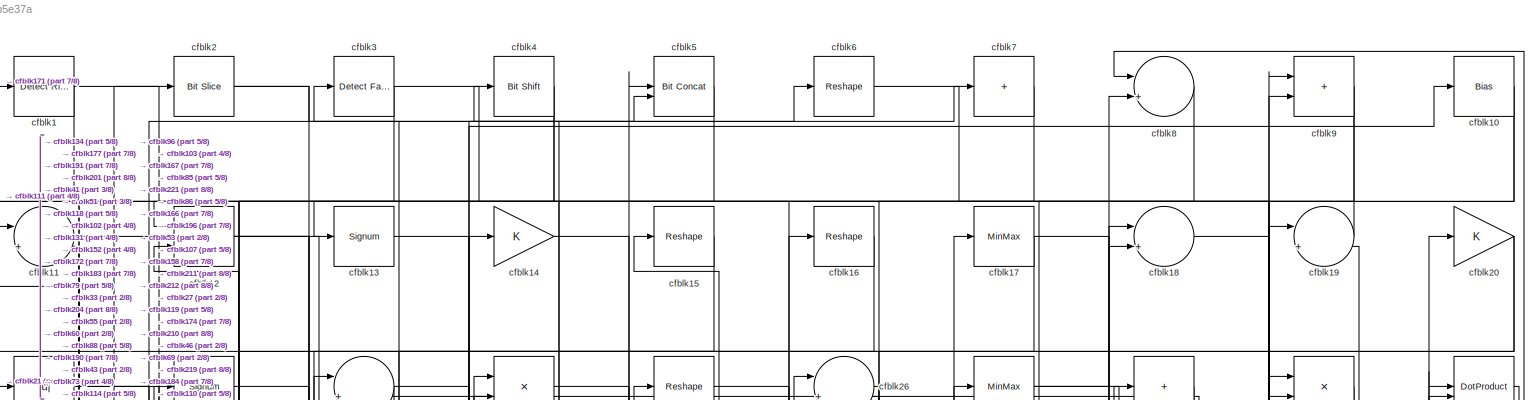
[diagram: root canvas - part 1/8, full width, top band]
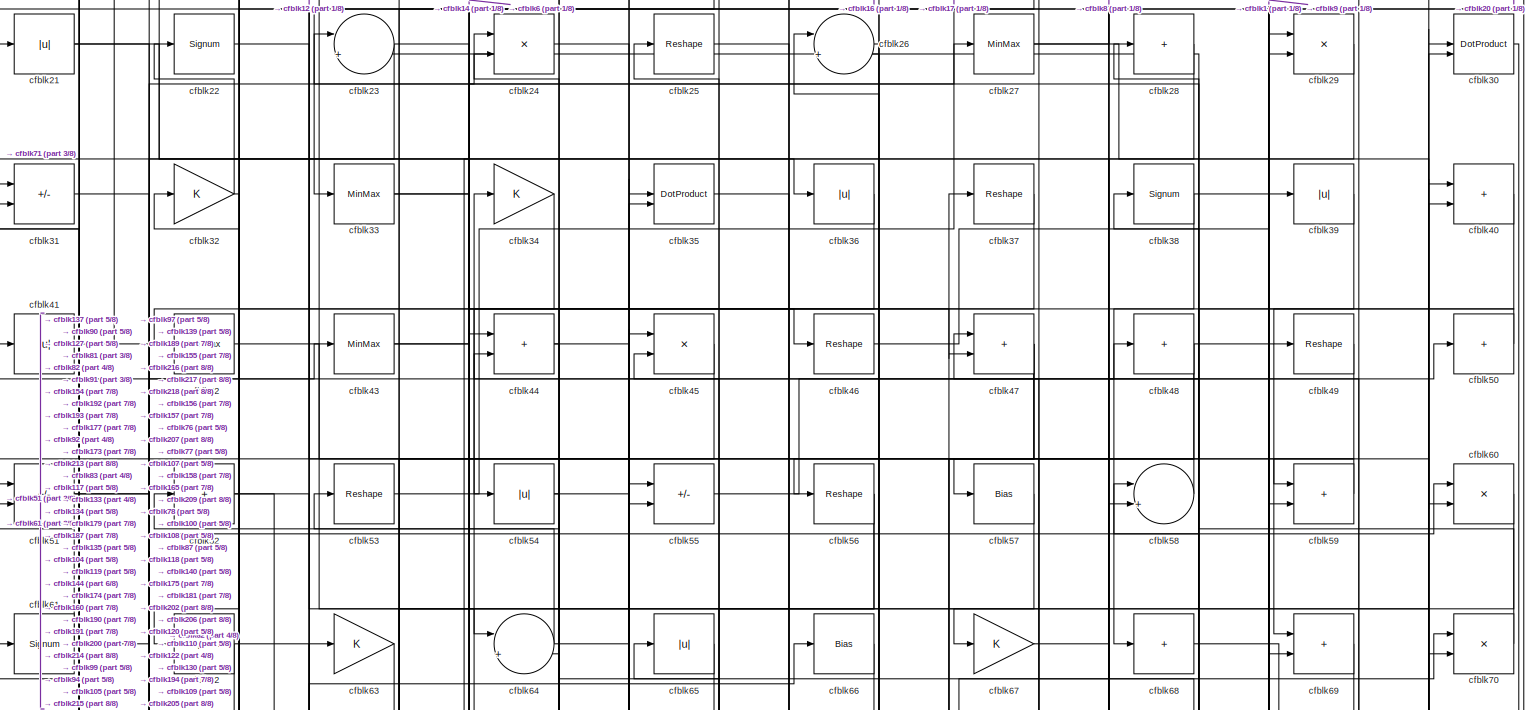
[diagram: root canvas - part 2/8, full width, top band]
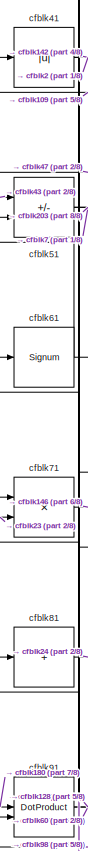
[diagram: root canvas - part 3/8, top left region]
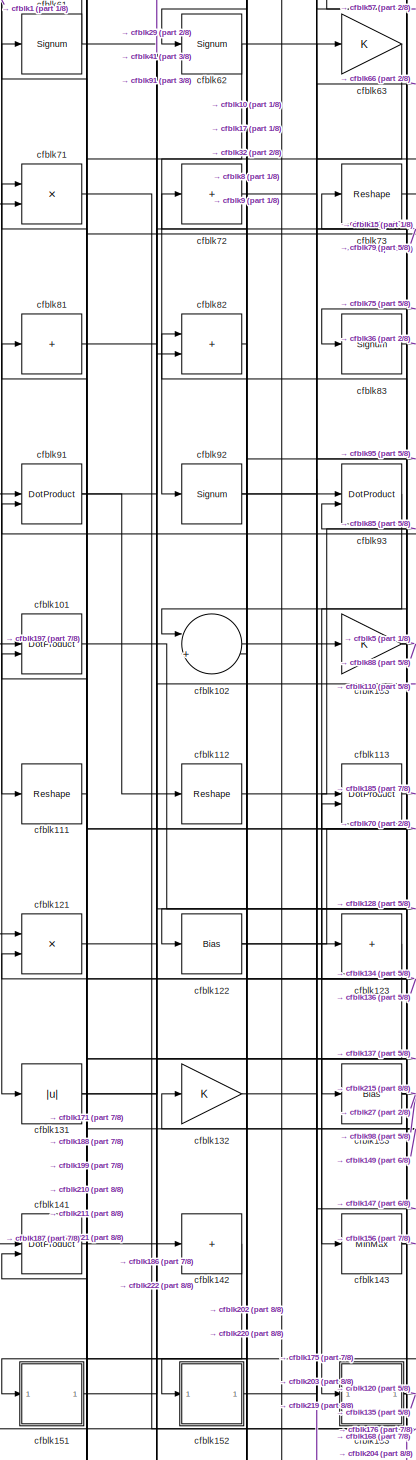
[diagram: root canvas - part 4/8, middle left region]
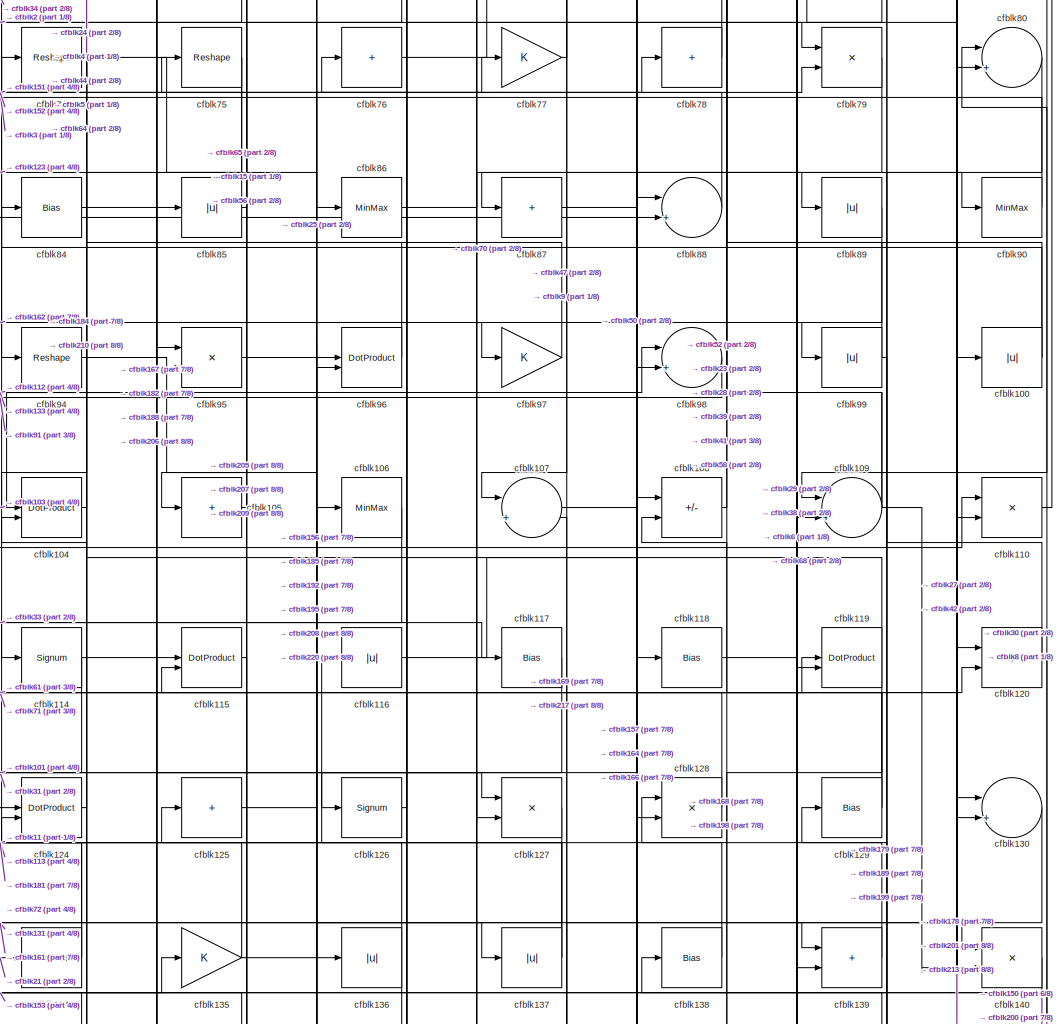
[diagram: root canvas - part 5/8, central region]
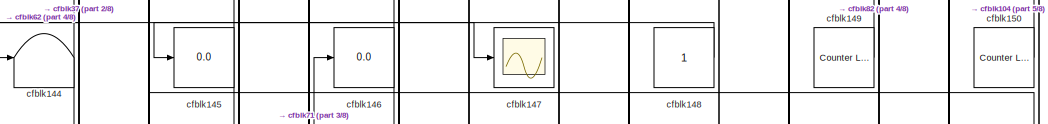
[diagram: root canvas - part 6/8, central region]
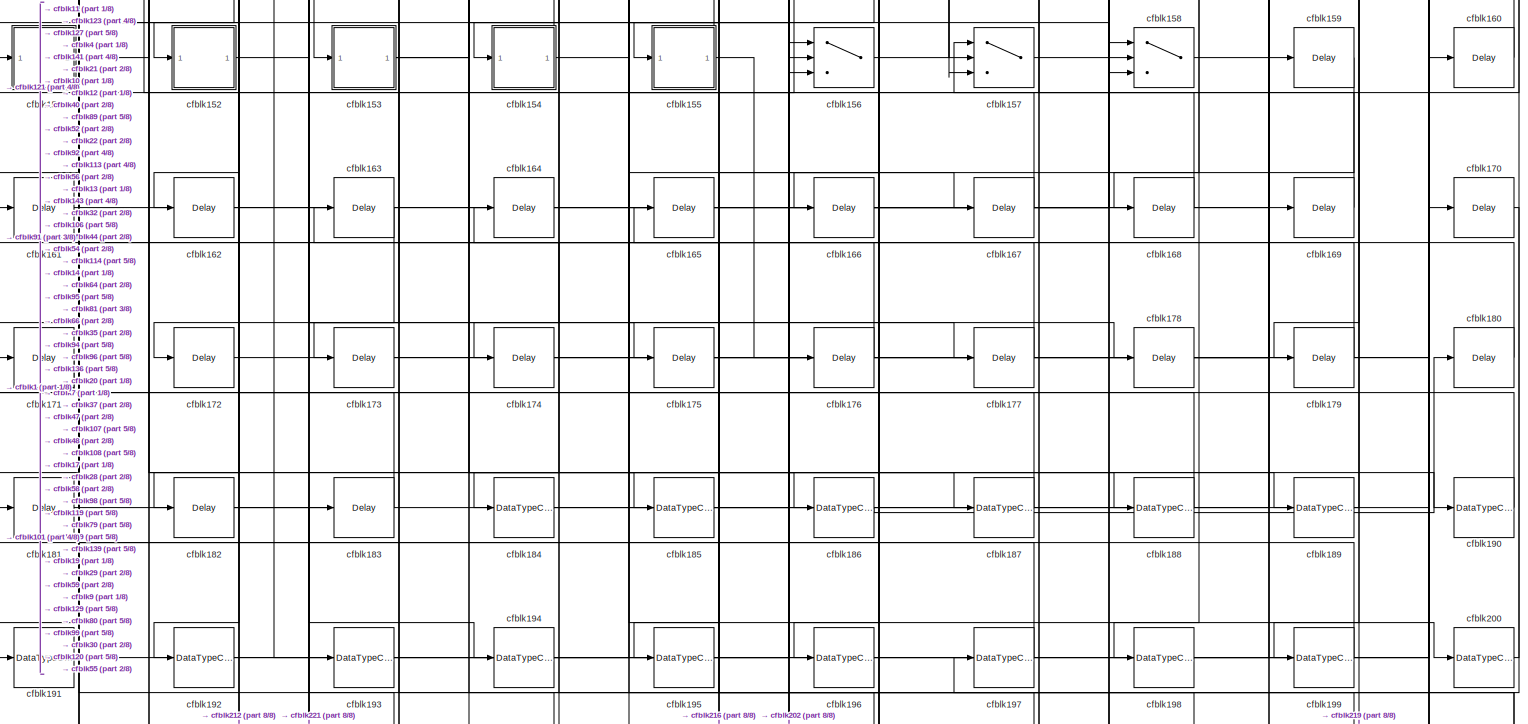
[diagram: root canvas - part 7/8, full width, bottom band]
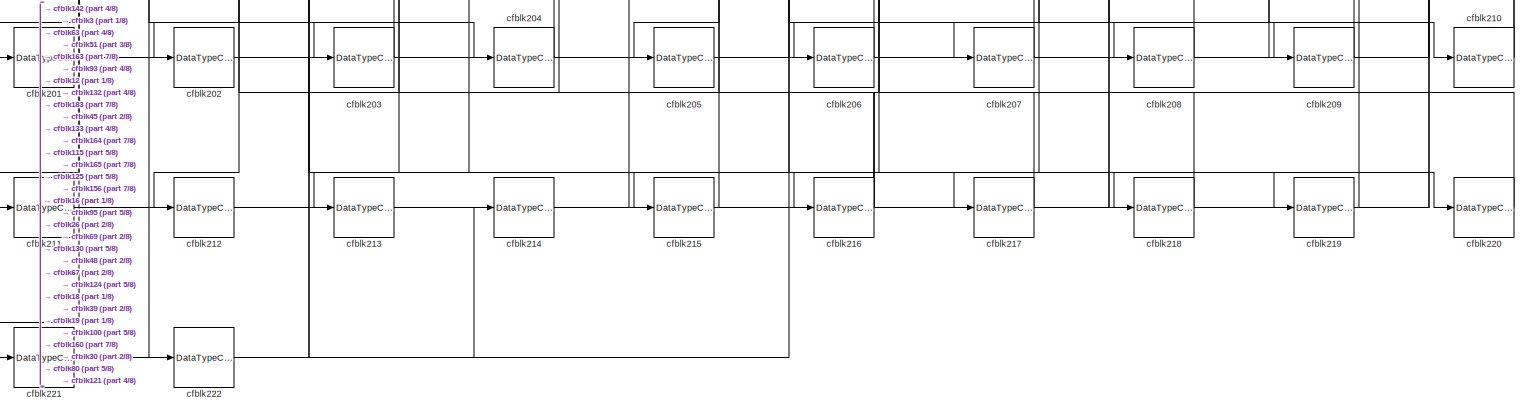
[diagram: root canvas - part 8/8, full width, bottom band]
MODEL slx_c253c2b5e37a
KIND model
CONFIG AbsTol = auto
CONFIG EnableMultiTasking = off
CONFIG FixedStep = auto
CONFIG MaxStep = auto
CONFIG MinStep = auto
CONFIG RelTol = 1e-3
CONFIG SampleTimeConstraint = Unconstrained
CONFIG SolverName = VariableStepAuto
CONFIG StartTime = 0.0
CONFIG StopTime = 10.0
BLOCK [Reference] cfblk1  REF=hdlsllib/Logic and Bit
Operations/Detect Rise
Positive
  SourceBlock = hdlsllib/Logic and Bit\nOperations/Detect Rise\nPositive
  SourceType = Detect Rise Positive
BLOCK [Bias] cfblk10
  Bias = 0.0
  SaturateOnIntegerOverflow = off
BLOCK [Abs] cfblk100
  SaturateOnIntegerOverflow = off
BLOCK [DotProduct] cfblk101
  OutDataTypeStr = Inherit: Inherit via internal rule
BLOCK [Sum] cfblk102
  Inputs = |++
BLOCK [Gain] cfblk103
BLOCK [DotProduct] cfblk104
  OutDataTypeStr = Inherit: Inherit via internal rule
BLOCK [Sum] cfblk105
  IconShape = rectangular
  Inputs = +
BLOCK [MinMax] cfblk106
BLOCK [Sum] cfblk107
  Inputs = |++
BLOCK [Sum] cfblk108
  IconShape = rectangular
  Inputs = +-
BLOCK [Sum] cfblk109
  Inputs = |++
BLOCK [Sum] cfblk11
  Inputs = |++
BLOCK [Product] cfblk110
  Inputs = */
  RndMeth = Zero
  SaturateOnIntegerOverflow = on
BLOCK [Reshape] cfblk111
BLOCK [Reshape] cfblk112
BLOCK [DotProduct] cfblk113
  OutDataTypeStr = Inherit: Inherit via internal rule
BLOCK [Signum] cfblk114
BLOCK [DotProduct] cfblk115
  OutDataTypeStr = Inherit: Inherit via internal rule
BLOCK [Abs] cfblk116
  SaturateOnIntegerOverflow = off
BLOCK [Bias] cfblk117
  Bias = 0.0
  SaturateOnIntegerOverflow = off
BLOCK [Bias] cfblk118
  Bias = 0.0
  SaturateOnIntegerOverflow = off
BLOCK [DotProduct] cfblk119
  OutDataTypeStr = Inherit: Inherit via internal rule
BLOCK [Product] cfblk12
  Inputs = */
  RndMeth = Zero
  SaturateOnIntegerOverflow = on
BLOCK [Sum] cfblk120
  IconShape = rectangular
  Inputs = +-
BLOCK [Product] cfblk121
  Inputs = */
  RndMeth = Zero
  SaturateOnIntegerOverflow = on
BLOCK [Bias] cfblk122
  Bias = 0.0
  SaturateOnIntegerOverflow = off
BLOCK [Sum] cfblk123
  IconShape = rectangular
  Inputs = +
BLOCK [DotProduct] cfblk124
  OutDataTypeStr = Inherit: Inherit via internal rule
BLOCK [Sum] cfblk125
  IconShape = rectangular
  Inputs = +
BLOCK [Signum] cfblk126
BLOCK [Product] cfblk127
  Inputs = */
  RndMeth = Zero
  SaturateOnIntegerOverflow = on
BLOCK [Product] cfblk128
  Inputs = */
  RndMeth = Zero
  SaturateOnIntegerOverflow = on
BLOCK [Bias] cfblk129
  Bias = 0.0
  SaturateOnIntegerOverflow = off
BLOCK [Signum] cfblk13
BLOCK [Sum] cfblk130
  Inputs = |++
BLOCK [Abs] cfblk131
  SaturateOnIntegerOverflow = off
BLOCK [Gain] cfblk132
BLOCK [Bias] cfblk133
  Bias = 0.0
  SaturateOnIntegerOverflow = off
BLOCK [MinMax] cfblk134
BLOCK [Gain] cfblk135
BLOCK [Abs] cfblk136
  SaturateOnIntegerOverflow = off
BLOCK [Abs] cfblk137
  SaturateOnIntegerOverflow = off
BLOCK [Bias] cfblk138
  Bias = 0.0
  SaturateOnIntegerOverflow = off
BLOCK [Sum] cfblk139
  IconShape = rectangular
BLOCK [Gain] cfblk14
BLOCK [Product] cfblk140
  Inputs = */
  RndMeth = Zero
  SaturateOnIntegerOverflow = on
BLOCK [DotProduct] cfblk141
  OutDataTypeStr = Inherit: Inherit via internal rule
BLOCK [Sum] cfblk142
  IconShape = rectangular
  Inputs = +
BLOCK [MinMax] cfblk143
BLOCK [Terminator] cfblk144
BLOCK [Display] cfblk145
  Decimation = 1
BLOCK [Display] cfblk146
  Decimation = 1
BLOCK [Scope] cfblk147
  Floating = off
  NumInputPorts = 1
  ScopeSpecificationString = Simulink.scopes.TimeScopeBlockCfg('CurrentConfiguration', extmgr.ConfigurationSet(extmgr.Configuration('Core','General UI',true),extmgr.Configuration('Core','Source UI',true),extmgr.Configuration('Sources','WiredSimulink',true,'DataLoggingVariableName','ScopeData2','DataLoggingSaveFormat','Array','DataLoggingLimitDataPoints',true,'DataLoggingDecimation','1'),extmgr.Configuration('Visuals','Time Do...<+868ch>
BLOCK [Constant] cfblk148
  SampleTime = -1
BLOCK [Reference] cfblk149  REF=hdlsllib/Sources/Counter
Limited
  SourceBlock = hdlsllib/Sources/Counter\nLimited
  SourceType = Counter Limited
BLOCK [Reshape] cfblk15
BLOCK [Reference] cfblk150  REF=hdlsllib/Sources/Counter
Limited
  SourceBlock = hdlsllib/Sources/Counter\nLimited
  SourceType = Counter Limited
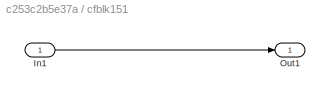
BLOCK [SubSystem] cfblk151
  LibrarySourceBlock = hdlsllib/Ports &\nSubsystems/Subsystem
BLOCK [Inport] cfblk151/In1
BLOCK [Outport] cfblk151/Out1
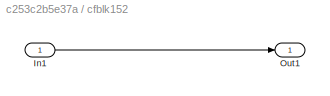
BLOCK [SubSystem] cfblk152
  LibrarySourceBlock = hdlsllib/Ports &\nSubsystems/Subsystem
BLOCK [Inport] cfblk152/In1
BLOCK [Outport] cfblk152/Out1
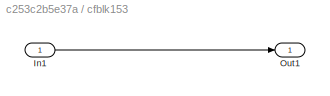
BLOCK [SubSystem] cfblk153
  LibrarySourceBlock = hdlsllib/Ports &\nSubsystems/Subsystem
BLOCK [Inport] cfblk153/In1
BLOCK [Outport] cfblk153/Out1
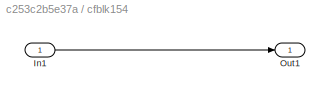
BLOCK [SubSystem] cfblk154
  LibrarySourceBlock = hdlsllib/Ports &\nSubsystems/Subsystem
BLOCK [Inport] cfblk154/In1
BLOCK [Outport] cfblk154/Out1
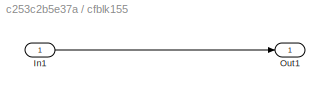
BLOCK [SubSystem] cfblk155
  LibrarySourceBlock = hdlsllib/Ports &\nSubsystems/Subsystem
BLOCK [Inport] cfblk155/In1
BLOCK [Outport] cfblk155/Out1
BLOCK [Switch] cfblk156
  InputSameDT = off
  SaturateOnIntegerOverflow = off
BLOCK [Switch] cfblk157
  InputSameDT = off
  SaturateOnIntegerOverflow = off
BLOCK [Switch] cfblk158
  InputSameDT = off
  SaturateOnIntegerOverflow = off
BLOCK [Delay] cfblk159
  InputPortMap = u0
  SampleTime = 1
BLOCK [Reshape] cfblk16
BLOCK [Delay] cfblk160
  InputPortMap = u0
  SampleTime = 1
BLOCK [Delay] cfblk161
  InputPortMap = u0
  SampleTime = 1
BLOCK [Delay] cfblk162
  InputPortMap = u0
  SampleTime = 1
BLOCK [Delay] cfblk163
  InputPortMap = u0
  SampleTime = 1
BLOCK [Delay] cfblk164
  InputPortMap = u0
  SampleTime = 1
BLOCK [Delay] cfblk165
  InputPortMap = u0
  SampleTime = 1
BLOCK [Delay] cfblk166
  InputPortMap = u0
  SampleTime = 1
BLOCK [Delay] cfblk167
  InputPortMap = u0
  SampleTime = 1
BLOCK [Delay] cfblk168
  InputPortMap = u0
  SampleTime = 1
BLOCK [Delay] cfblk169
  InputPortMap = u0
  SampleTime = 1
BLOCK [MinMax] cfblk17
BLOCK [Delay] cfblk170
  InputPortMap = u0
  SampleTime = 1
BLOCK [Delay] cfblk171
  InputPortMap = u0
  SampleTime = 1
BLOCK [Delay] cfblk172
  InputPortMap = u0
  SampleTime = 1
BLOCK [Delay] cfblk173
  InputPortMap = u0
  SampleTime = 1
BLOCK [Delay] cfblk174
  InputPortMap = u0
  SampleTime = 1
BLOCK [Delay] cfblk175
  InputPortMap = u0
  SampleTime = 1
BLOCK [Delay] cfblk176
  InputPortMap = u0
  SampleTime = 1
BLOCK [Delay] cfblk177
  InputPortMap = u0
  SampleTime = 1
BLOCK [Delay] cfblk178
  InputPortMap = u0
  SampleTime = 1
BLOCK [Delay] cfblk179
  InputPortMap = u0
  SampleTime = 1
BLOCK [Sum] cfblk18
  Inputs = |++
BLOCK [Delay] cfblk180
  InputPortMap = u0
  SampleTime = 1
BLOCK [Delay] cfblk181
  InputPortMap = u0
  SampleTime = 1
BLOCK [Delay] cfblk182
  InputPortMap = u0
  SampleTime = 1
BLOCK [Delay] cfblk183
  InputPortMap = u0
  SampleTime = 1
BLOCK [DataTypeConversion] cfblk184
  OutDataTypeStr = uint8
  RndMeth = Floor
  SaturateOnIntegerOverflow = off
BLOCK [DataTypeConversion] cfblk185
  OutDataTypeStr = uint8
  RndMeth = Floor
  SaturateOnIntegerOverflow = off
BLOCK [DataTypeConversion] cfblk186
  OutDataTypeStr = uint8
  RndMeth = Floor
  SaturateOnIntegerOverflow = off
BLOCK [DataTypeConversion] cfblk187
  OutDataTypeStr = uint8
  RndMeth = Floor
  SaturateOnIntegerOverflow = off
BLOCK [DataTypeConversion] cfblk188
  OutDataTypeStr = uint8
  RndMeth = Floor
  SaturateOnIntegerOverflow = off
BLOCK [DataTypeConversion] cfblk189
  OutDataTypeStr = uint8
  RndMeth = Floor
  SaturateOnIntegerOverflow = off
BLOCK [Sum] cfblk19
  Inputs = |++
BLOCK [DataTypeConversion] cfblk190
  OutDataTypeStr = uint8
  RndMeth = Floor
  SaturateOnIntegerOverflow = off
BLOCK [DataTypeConversion] cfblk191
  OutDataTypeStr = uint8
  RndMeth = Floor
  SaturateOnIntegerOverflow = off
BLOCK [DataTypeConversion] cfblk192
  OutDataTypeStr = uint8
  RndMeth = Floor
  SaturateOnIntegerOverflow = off
BLOCK [DataTypeConversion] cfblk193
  OutDataTypeStr = uint8
  RndMeth = Floor
  SaturateOnIntegerOverflow = off
BLOCK [DataTypeConversion] cfblk194
  OutDataTypeStr = uint8
  RndMeth = Floor
  SaturateOnIntegerOverflow = off
BLOCK [DataTypeConversion] cfblk195
  OutDataTypeStr = uint8
  RndMeth = Floor
  SaturateOnIntegerOverflow = off
BLOCK [DataTypeConversion] cfblk196
  OutDataTypeStr = uint8
  RndMeth = Floor
  SaturateOnIntegerOverflow = off
BLOCK [DataTypeConversion] cfblk197
  OutDataTypeStr = uint8
  RndMeth = Floor
  SaturateOnIntegerOverflow = off
BLOCK [DataTypeConversion] cfblk198
  OutDataTypeStr = uint8
  RndMeth = Floor
  SaturateOnIntegerOverflow = off
BLOCK [DataTypeConversion] cfblk199
  OutDataTypeStr = uint8
  RndMeth = Floor
  SaturateOnIntegerOverflow = off
BLOCK [Reference] cfblk2  REF=hdlsllib/Logic and Bit
Operations/Bit Slice
  SourceBlock = hdlsllib/Logic and Bit\nOperations/Bit Slice
  SourceType = Bit Slice
BLOCK [Gain] cfblk20
BLOCK [DataTypeConversion] cfblk200
  OutDataTypeStr = uint8
  RndMeth = Floor
  SaturateOnIntegerOverflow = off
BLOCK [DataTypeConversion] cfblk201
  OutDataTypeStr = uint8
  RndMeth = Floor
  SaturateOnIntegerOverflow = off
BLOCK [DataTypeConversion] cfblk202
  RndMeth = Floor
  SaturateOnIntegerOverflow = off
BLOCK [DataTypeConversion] cfblk203
  OutDataTypeStr = uint8
  RndMeth = Floor
  SaturateOnIntegerOverflow = off
BLOCK [DataTypeConversion] cfblk204
  OutDataTypeStr = uint8
  RndMeth = Floor
  SaturateOnIntegerOverflow = off
BLOCK [DataTypeConversion] cfblk205
  OutDataTypeStr = uint8
  RndMeth = Floor
  SaturateOnIntegerOverflow = off
BLOCK [DataTypeConversion] cfblk206
  OutDataTypeStr = uint8
  RndMeth = Floor
  SaturateOnIntegerOverflow = off
BLOCK [DataTypeConversion] cfblk207
  OutDataTypeStr = uint8
  RndMeth = Floor
  SaturateOnIntegerOverflow = off
BLOCK [DataTypeConversion] cfblk208
  OutDataTypeStr = uint8
  RndMeth = Floor
  SaturateOnIntegerOverflow = off
BLOCK [DataTypeConversion] cfblk209
  OutDataTypeStr = uint8
  RndMeth = Floor
  SaturateOnIntegerOverflow = off
BLOCK [Abs] cfblk21
  SaturateOnIntegerOverflow = off
BLOCK [DataTypeConversion] cfblk210
  RndMeth = Floor
  SaturateOnIntegerOverflow = off
BLOCK [DataTypeConversion] cfblk211
  OutDataTypeStr = uint8
  RndMeth = Floor
  SaturateOnIntegerOverflow = off
BLOCK [DataTypeConversion] cfblk212
  OutDataTypeStr = uint8
  RndMeth = Floor
  SaturateOnIntegerOverflow = off
BLOCK [DataTypeConversion] cfblk213
  OutDataTypeStr = uint8
  RndMeth = Floor
  SaturateOnIntegerOverflow = off
BLOCK [DataTypeConversion] cfblk214
  OutDataTypeStr = uint8
  RndMeth = Floor
  SaturateOnIntegerOverflow = off
BLOCK [DataTypeConversion] cfblk215
  OutDataTypeStr = uint8
  RndMeth = Floor
  SaturateOnIntegerOverflow = off
BLOCK [DataTypeConversion] cfblk216
  RndMeth = Floor
  SaturateOnIntegerOverflow = off
BLOCK [DataTypeConversion] cfblk217
  OutDataTypeStr = uint8
  RndMeth = Floor
  SaturateOnIntegerOverflow = off
BLOCK [DataTypeConversion] cfblk218
  OutDataTypeStr = uint8
  RndMeth = Floor
  SaturateOnIntegerOverflow = off
BLOCK [DataTypeConversion] cfblk219
  RndMeth = Floor
  SaturateOnIntegerOverflow = off
BLOCK [Signum] cfblk22
BLOCK [DataTypeConversion] cfblk220
  OutDataTypeStr = uint8
  RndMeth = Floor
  SaturateOnIntegerOverflow = off
BLOCK [DataTypeConversion] cfblk221
  RndMeth = Floor
  SaturateOnIntegerOverflow = off
BLOCK [DataTypeConversion] cfblk222
  OutDataTypeStr = uint8
  RndMeth = Floor
  SaturateOnIntegerOverflow = off
BLOCK [Sum] cfblk23
  Inputs = |++
BLOCK [Product] cfblk24
  Inputs = */
  RndMeth = Zero
  SaturateOnIntegerOverflow = on
BLOCK [Reshape] cfblk25
BLOCK [Sum] cfblk26
  Inputs = |++
BLOCK [MinMax] cfblk27
BLOCK [Sum] cfblk28
  IconShape = rectangular
  Inputs = +
BLOCK [Product] cfblk29
  Inputs = */
  RndMeth = Zero
  SaturateOnIntegerOverflow = on
BLOCK [Reference] cfblk3  REF=hdlsllib/Logic and Bit
Operations/Detect Fall
Nonpositive
  SourceBlock = hdlsllib/Logic and Bit\nOperations/Detect Fall\nNonpositive
  SourceType = Detect Fall Nonpositive
BLOCK [DotProduct] cfblk30
  OutDataTypeStr = Inherit: Inherit via internal rule
BLOCK [Sum] cfblk31
  IconShape = rectangular
  Inputs = +-
BLOCK [Gain] cfblk32
BLOCK [MinMax] cfblk33
BLOCK [Gain] cfblk34
BLOCK [DotProduct] cfblk35
  OutDataTypeStr = Inherit: Inherit via internal rule
BLOCK [Abs] cfblk36
  SaturateOnIntegerOverflow = off
BLOCK [Reshape] cfblk37
BLOCK [Signum] cfblk38
BLOCK [Abs] cfblk39
  SaturateOnIntegerOverflow = off
BLOCK [Reference] cfblk4  REF=hdlsllib/Logic and Bit
Operations/Bit Shift
  SourceBlock = hdlsllib/Logic and Bit\nOperations/Bit Shift
  SourceType = Bit Shift
BLOCK [Sum] cfblk40
  IconShape = rectangular
BLOCK [Abs] cfblk41
  SaturateOnIntegerOverflow = off
BLOCK [MinMax] cfblk42
BLOCK [MinMax] cfblk43
BLOCK [Sum] cfblk44
  IconShape = rectangular
BLOCK [Product] cfblk45
  Inputs = */
  RndMeth = Zero
  SaturateOnIntegerOverflow = on
BLOCK [Reshape] cfblk46
BLOCK [Sum] cfblk47
  IconShape = rectangular
BLOCK [Sum] cfblk48
  IconShape = rectangular
  Inputs = +
BLOCK [Reshape] cfblk49
BLOCK [Reference] cfblk5  REF=hdlsllib/Logic and Bit
Operations/Bit Concat
  SourceBlock = hdlsllib/Logic and Bit\nOperations/Bit Concat
  SourceType = Bit Concat
BLOCK [Sum] cfblk50
  IconShape = rectangular
  Inputs = +
BLOCK [Sum] cfblk51
  IconShape = rectangular
  Inputs = +-
BLOCK [Sum] cfblk52
  IconShape = rectangular
  Inputs = +
BLOCK [Reshape] cfblk53
BLOCK [Abs] cfblk54
  SaturateOnIntegerOverflow = off
BLOCK [Sum] cfblk55
  IconShape = rectangular
  Inputs = +-
BLOCK [Reshape] cfblk56
BLOCK [Bias] cfblk57
  Bias = 0.0
  SaturateOnIntegerOverflow = off
BLOCK [Sum] cfblk58
  Inputs = |++
BLOCK [Sum] cfblk59
  IconShape = rectangular
BLOCK [Reshape] cfblk6
BLOCK [Product] cfblk60
  Inputs = */
  RndMeth = Zero
  SaturateOnIntegerOverflow = on
BLOCK [Signum] cfblk61
BLOCK [Signum] cfblk62
BLOCK [Gain] cfblk63
BLOCK [Sum] cfblk64
  Inputs = |++
BLOCK [Abs] cfblk65
  SaturateOnIntegerOverflow = off
BLOCK [Bias] cfblk66
  Bias = 0.0
  SaturateOnIntegerOverflow = off
BLOCK [Gain] cfblk67
BLOCK [Sum] cfblk68
  IconShape = rectangular
  Inputs = +
BLOCK [Sum] cfblk69
  IconShape = rectangular
BLOCK [Sum] cfblk7
  IconShape = rectangular
  Inputs = +
BLOCK [Product] cfblk70
  Inputs = */
  RndMeth = Zero
  SaturateOnIntegerOverflow = on
BLOCK [Product] cfblk71
  Inputs = */
  RndMeth = Zero
  SaturateOnIntegerOverflow = on
BLOCK [Sum] cfblk72
  IconShape = rectangular
  Inputs = +
BLOCK [Reshape] cfblk73
BLOCK [Reshape] cfblk74
BLOCK [Reshape] cfblk75
BLOCK [Sum] cfblk76
  IconShape = rectangular
  Inputs = +
BLOCK [Gain] cfblk77
BLOCK [Sum] cfblk78
  IconShape = rectangular
  Inputs = +
BLOCK [Product] cfblk79
  Inputs = */
  RndMeth = Zero
  SaturateOnIntegerOverflow = on
BLOCK [Sum] cfblk8
  Inputs = |++
BLOCK [Sum] cfblk80
  Inputs = |++
BLOCK [Sum] cfblk81
  IconShape = rectangular
  Inputs = +
BLOCK [Sum] cfblk82
  IconShape = rectangular
BLOCK [Signum] cfblk83
BLOCK [Bias] cfblk84
  Bias = 0.0
  SaturateOnIntegerOverflow = off
BLOCK [Abs] cfblk85
  SaturateOnIntegerOverflow = off
BLOCK [MinMax] cfblk86
BLOCK [Sum] cfblk87
  IconShape = rectangular
  Inputs = +
BLOCK [Sum] cfblk88
  Inputs = |++
BLOCK [Abs] cfblk89
  SaturateOnIntegerOverflow = off
BLOCK [Sum] cfblk9
  IconShape = rectangular
BLOCK [MinMax] cfblk90
BLOCK [DotProduct] cfblk91
  OutDataTypeStr = Inherit: Inherit via internal rule
BLOCK [Signum] cfblk92
BLOCK [DotProduct] cfblk93
  OutDataTypeStr = Inherit: Inherit via internal rule
BLOCK [Reshape] cfblk94
BLOCK [Product] cfblk95
  Inputs = */
  RndMeth = Zero
  SaturateOnIntegerOverflow = on
BLOCK [DotProduct] cfblk96
  OutDataTypeStr = Inherit: Inherit via internal rule
BLOCK [Gain] cfblk97
BLOCK [Sum] cfblk98
  Inputs = |++
BLOCK [Abs] cfblk99
  SaturateOnIntegerOverflow = off
NET cfblk100:1 -> cfblk28:1, cfblk84:1
LINE cfblk101:1 -> cfblk128:2
LINE cfblk102:1 -> cfblk143:1
NET cfblk103:1 -> cfblk5:1, cfblk88:2
LINE cfblk104:1 -> cfblk24:1
LINE cfblk105:1 -> cfblk25:1
LINE cfblk106:1 -> cfblk184:1
LINE cfblk107:1 -> cfblk50:1
LINE cfblk108:1 -> cfblk58:1
NET cfblk109:1 -> cfblk140:2, cfblk23:2, cfblk41:1
NET cfblk10:1 -> cfblk131:1, cfblk172:1
LINE cfblk110:1 -> cfblk8:1
LINE cfblk111:1 -> cfblk151:1
LINE cfblk112:1 -> cfblk85:1
LINE cfblk113:1 -> cfblk185:1
NET cfblk114:1 -> cfblk182:1, cfblk188:1
LINE cfblk115:1 -> cfblk205:1
LINE cfblk116:1 -> cfblk88:1
LINE cfblk117:1 -> cfblk126:1
LINE cfblk118:1 -> cfblk29:1
NET cfblk119:1 -> cfblk168:1, cfblk64:2
LINE cfblk11:1 -> cfblk118:1
NET cfblk120:1 -> cfblk157:1, cfblk44:2
LINE cfblk121:1 -> cfblk222:1
NET cfblk122:1 -> cfblk153:1, cfblk70:2
LINE cfblk123:1 -> cfblk171:1
LINE cfblk124:1 -> cfblk74:1
LINE cfblk125:1 -> cfblk208:1
LINE cfblk126:1 -> cfblk76:1
LINE cfblk127:1 -> cfblk161:1
LINE cfblk128:1 -> cfblk61:1
NET cfblk129:1 -> cfblk108:2, cfblk71:1
NET cfblk12:1 -> cfblk204:1, cfblk55:2, cfblk60:2
LINE cfblk130:1 -> cfblk217:1
NET cfblk131:1 -> cfblk110:1, cfblk137:1
LINE cfblk132:1 -> cfblk219:1
NET cfblk133:1 -> cfblk215:1, cfblk27:1, cfblk98:1
NET cfblk134:1 -> cfblk11:2, cfblk72:1
NET cfblk135:1 -> cfblk34:1, cfblk77:1
NET cfblk136:1 -> cfblk113:1, cfblk181:1
NET cfblk137:1 -> cfblk31:1, cfblk75:1
LINE cfblk138:1 -> cfblk128:1
LINE cfblk139:1 -> cfblk116:1
LINE cfblk13:1 -> cfblk190:1
LINE cfblk140:1 -> cfblk138:1
LINE cfblk141:1 -> cfblk186:1
LINE cfblk142:1 -> cfblk211:1
NET cfblk143:1 -> cfblk156:2, cfblk73:1
LINE cfblk148:1 -> cfblk145:1
LINE cfblk149:1 -> cfblk82:1
LINE cfblk14:1 -> cfblk167:1
LINE cfblk150:1 -> cfblk104:2
LINE cfblk151/In1:1 -> cfblk151/Out1:1
LINE cfblk151:1 -> cfblk78:1
LINE cfblk152/In1:1 -> cfblk152/Out1:1
LINE cfblk152:1 -> cfblk79:2
LINE cfblk153/In1:1 -> cfblk153/Out1:1
NET cfblk153:1 -> cfblk120:2, cfblk135:1
LINE cfblk154/In1:1 -> cfblk154/Out1:1
NET cfblk154:1 -> cfblk178:1, cfblk32:1
LINE cfblk155/In1:1 -> cfblk155/Out1:1
NET cfblk155:1 -> cfblk176:1, cfblk81:1
LINE cfblk156:1 -> cfblk37:1
LINE cfblk157:1 -> cfblk119:1
LINE cfblk158:1 -> cfblk169:1
LINE cfblk159:1 -> cfblk195:1
LINE cfblk15:1 -> cfblk103:1
LINE cfblk160:1 -> cfblk55:1
LINE cfblk161:1 -> cfblk109:2
LINE cfblk162:1 -> cfblk139:2
LINE cfblk163:1 -> cfblk212:1
LINE cfblk164:1 -> cfblk98:2
LINE cfblk165:1 -> cfblk58:2
LINE cfblk166:1 -> cfblk108:1
LINE cfblk167:1 -> cfblk95:1
LINE cfblk168:1 -> cfblk121:1
LINE cfblk169:1 -> cfblk107:2
LINE cfblk16:1 -> cfblk33:1
LINE cfblk170:1 -> cfblk197:1
LINE cfblk171:1 -> cfblk1:1
LINE cfblk172:1 -> cfblk19:1
LINE cfblk173:1 -> cfblk30:2
LINE cfblk174:1 -> cfblk9:2
LINE cfblk175:1 -> cfblk29:2
LINE cfblk176:1 -> cfblk113:2
LINE cfblk177:1 -> cfblk11:1
LINE cfblk178:1 -> cfblk120:1
LINE cfblk179:1 -> cfblk44:1
NET cfblk17:1 -> cfblk102:1, cfblk158:1
LINE cfblk180:1 -> cfblk91:1
LINE cfblk181:1 -> cfblk59:2
LINE cfblk182:1 -> cfblk194:1
LINE cfblk183:1 -> cfblk12:2
LINE cfblk184:1 -> cfblk20:1
LINE cfblk185:1 -> cfblk106:1
LINE cfblk186:1 -> cfblk180:1
LINE cfblk187:1 -> cfblk141:1
LINE cfblk188:1 -> cfblk141:2
LINE cfblk189:1 -> cfblk129:1
LINE cfblk18:1 -> cfblk210:1
LINE cfblk190:1 -> cfblk35:1
LINE cfblk191:1 -> cfblk35:2
LINE cfblk192:1 -> cfblk96:2
LINE cfblk193:1 -> cfblk40:1
LINE cfblk194:1 -> cfblk40:2
LINE cfblk195:1 -> cfblk96:1
LINE cfblk196:1 -> cfblk159:1
LINE cfblk197:1 -> cfblk101:1
LINE cfblk198:1 -> cfblk170:1
LINE cfblk199:1 -> cfblk101:2
LINE cfblk19:1 -> cfblk13:1
NET cfblk1:1 -> cfblk111:1, cfblk69:2
LINE cfblk200:1 -> cfblk80:1
LINE cfblk201:1 -> cfblk80:2
NET cfblk202:1 -> cfblk156:3, cfblk218:1, cfblk39:1
LINE cfblk203:1 -> cfblk93:1
LINE cfblk204:1 -> cfblk93:2
LINE cfblk205:1 -> cfblk30:1
LINE cfblk206:1 -> cfblk115:1
LINE cfblk207:1 -> cfblk115:2
LINE cfblk208:1 -> cfblk124:1
LINE cfblk209:1 -> cfblk125:1
NET cfblk20:1 -> cfblk196:1, cfblk21:1
NET cfblk210:1 -> cfblk121:2, cfblk124:2
LINE cfblk211:1 -> cfblk18:1
LINE cfblk212:1 -> cfblk18:2
LINE cfblk213:1 -> cfblk100:1
LINE cfblk214:1 -> cfblk45:1
LINE cfblk215:1 -> cfblk45:2
NET cfblk216:1 -> cfblk163:1, cfblk164:1, cfblk165:1
LINE cfblk217:1 -> cfblk26:1
LINE cfblk218:1 -> cfblk26:2
NET cfblk219:1 -> cfblk160:1, cfblk19:2
NET cfblk21:1 -> cfblk134:1, cfblk187:1
LINE cfblk220:1 -> cfblk132:1
NET cfblk221:1 -> cfblk16:1, cfblk183:1, cfblk214:1
LINE cfblk222:1 -> cfblk63:1
LINE cfblk22:1 -> cfblk177:1
NET cfblk23:1 -> cfblk47:2, cfblk71:2
LINE cfblk24:1 -> cfblk97:1
LINE cfblk25:1 -> cfblk139:1
LINE cfblk26:1 -> cfblk216:1
NET cfblk27:1 -> cfblk130:1, cfblk8:2
LINE cfblk28:1 -> cfblk158:2
LINE cfblk29:1 -> cfblk82:2
NET cfblk2:1 -> cfblk5:2, cfblk79:1
LINE cfblk30:1 -> cfblk109:1
LINE cfblk31:1 -> cfblk127:1
NET cfblk32:1 -> cfblk22:1, cfblk62:1
NET cfblk33:1 -> cfblk117:1, cfblk46:1
LINE cfblk34:1 -> cfblk42:1
LINE cfblk35:1 -> cfblk189:1
LINE cfblk36:1 -> cfblk54:1
LINE cfblk37:1 -> cfblk144:1
NET cfblk38:1 -> cfblk140:1, cfblk68:1
LINE cfblk39:1 -> cfblk87:1
NET cfblk3:1 -> cfblk201:1, cfblk86:1
LINE cfblk40:1 -> cfblk192:1
NET cfblk41:1 -> cfblk142:1, cfblk2:1
LINE cfblk42:1 -> cfblk110:2
NET cfblk43:1 -> cfblk14:1, cfblk6:1
NET cfblk44:1 -> cfblk154:1, cfblk99:1
LINE cfblk45:1 -> cfblk213:1
LINE cfblk46:1 -> cfblk9:1
NET cfblk47:1 -> cfblk157:3, cfblk51:2, cfblk83:1
NET cfblk48:1 -> cfblk157:2, cfblk207:1, cfblk69:1
LINE cfblk49:1 -> cfblk59:1
NET cfblk4:1 -> cfblk12:1, cfblk191:1
LINE cfblk50:1 -> cfblk49:1
NET cfblk51:1 -> cfblk203:1, cfblk7:1
NET cfblk52:1 -> cfblk193:1, cfblk64:1
LINE cfblk53:1 -> cfblk17:1
NET cfblk54:1 -> cfblk174:1, cfblk200:1
LINE cfblk55:1 -> cfblk48:1
NET cfblk56:1 -> cfblk105:1, cfblk173:1
LINE cfblk57:1 -> cfblk133:1
LINE cfblk58:1 -> cfblk56:1
LINE cfblk59:1 -> cfblk57:1
LINE cfblk5:1 -> cfblk114:1
LINE cfblk60:1 -> cfblk67:1
NET cfblk61:1 -> cfblk43:1, cfblk51:1
NET cfblk62:1 -> cfblk147:1, cfblk92:1
LINE cfblk63:1 -> cfblk221:1
NET cfblk64:1 -> cfblk158:3, cfblk53:1
LINE cfblk65:1 -> cfblk94:1
LINE cfblk66:1 -> cfblk155:1
LINE cfblk67:1 -> cfblk209:1
LINE cfblk68:1 -> cfblk130:2
LINE cfblk69:1 -> cfblk206:1
LINE cfblk6:1 -> cfblk119:2
LINE cfblk70:1 -> cfblk38:1
LINE cfblk71:1 -> cfblk146:1
LINE cfblk72:1 -> cfblk95:2
LINE cfblk73:1 -> cfblk10:1
LINE cfblk74:1 -> cfblk136:1
NET cfblk75:1 -> cfblk104:1, cfblk123:1
LINE cfblk76:1 -> cfblk70:1
LINE cfblk77:1 -> cfblk47:1
LINE cfblk78:1 -> cfblk52:1
LINE cfblk79:1 -> cfblk198:1
LINE cfblk7:1 -> cfblk166:1
LINE cfblk80:1 -> cfblk199:1
LINE cfblk81:1 -> cfblk24:2
LINE cfblk82:1 -> cfblk122:1
LINE cfblk83:1 -> cfblk36:1
LINE cfblk84:1 -> cfblk127:2
LINE cfblk85:1 -> cfblk15:1
LINE cfblk86:1 -> cfblk90:1
LINE cfblk87:1 -> cfblk89:1
LINE cfblk88:1 -> cfblk3:1
LINE cfblk89:1 -> cfblk162:1
LINE cfblk8:1 -> cfblk152:1
LINE cfblk90:1 -> cfblk31:2
NET cfblk91:1 -> cfblk112:1, cfblk60:1
NET cfblk92:1 -> cfblk175:1, cfblk66:1
LINE cfblk93:1 -> cfblk202:1
LINE cfblk94:1 -> cfblk156:1
LINE cfblk95:1 -> cfblk220:1
LINE cfblk96:1 -> cfblk4:1
LINE cfblk97:1 -> cfblk65:1
LINE cfblk98:1 -> cfblk91:2
NET cfblk99:1 -> cfblk179:1, cfblk23:1
NET cfblk9:1 -> cfblk102:2, cfblk107:1
note: NET lines group one-source signal fan-out (src -> all destinations, sorted); 1:1 wires keep LINE
